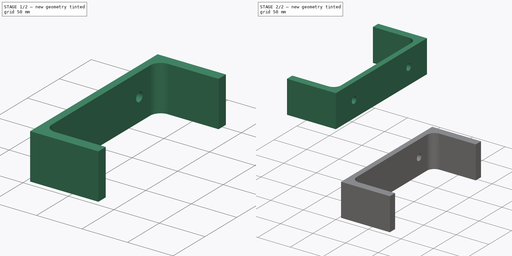
[diagram: build sequence overview — one tinted view per stage of 2, left to right]
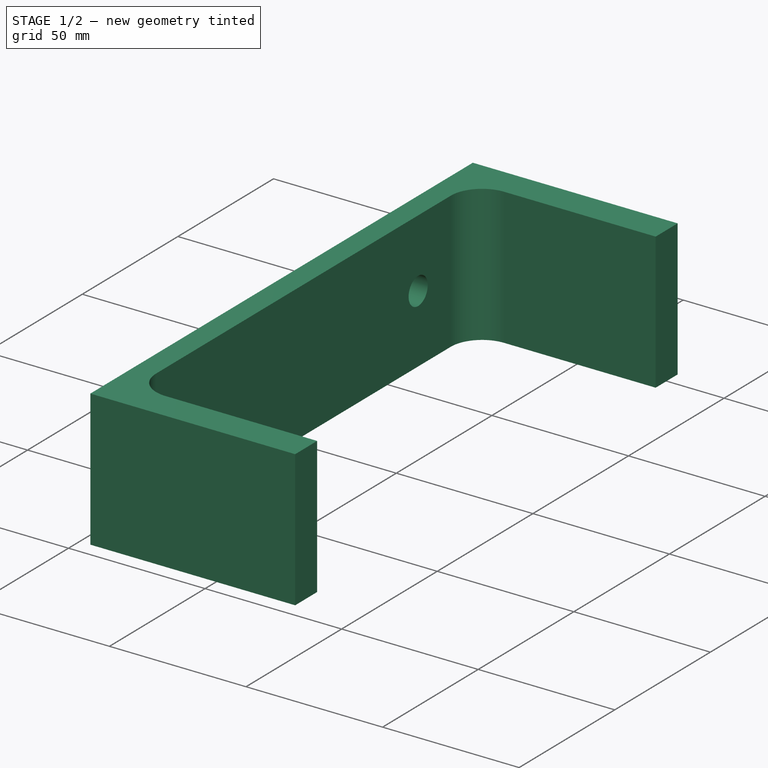
[diagram: stage 1 of 2 — iso view after this stage's code; geometry added in this stage tinted green]
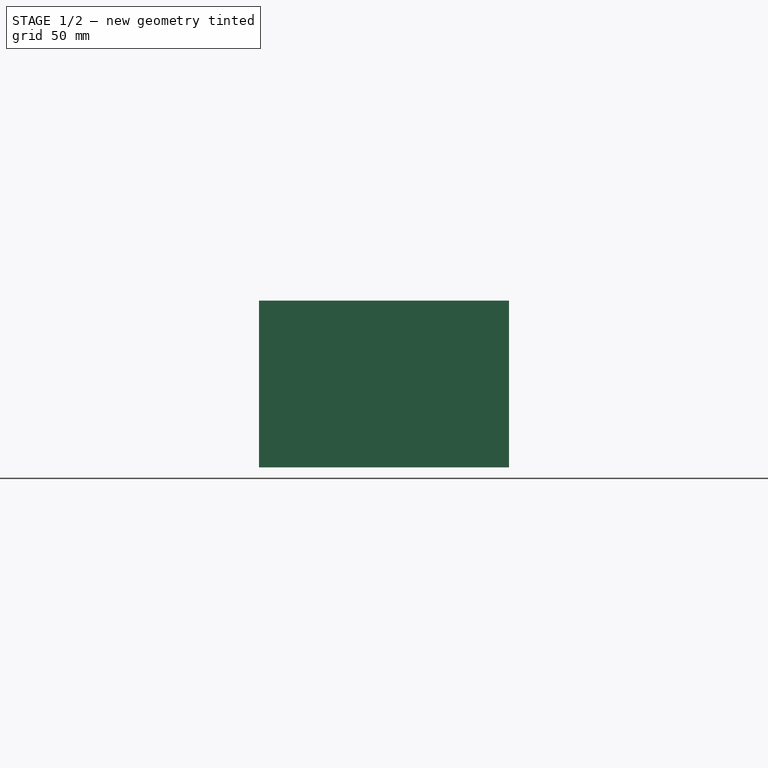
[diagram: stage 1 of 2 — front view after this stage's code; geometry added in this stage tinted green]
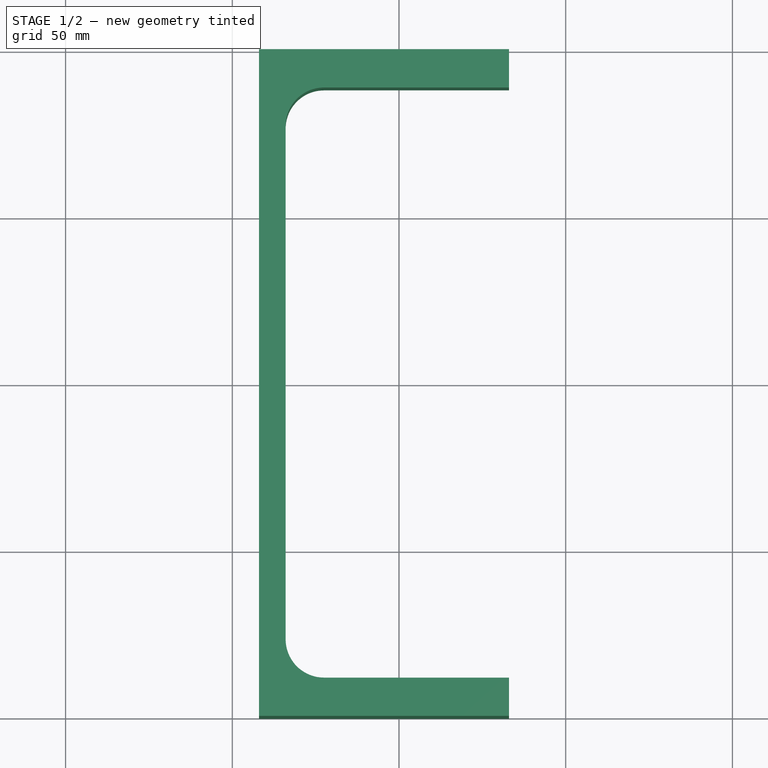
[diagram: stage 1 of 2 — top view after this stage's code; geometry added in this stage tinted green]
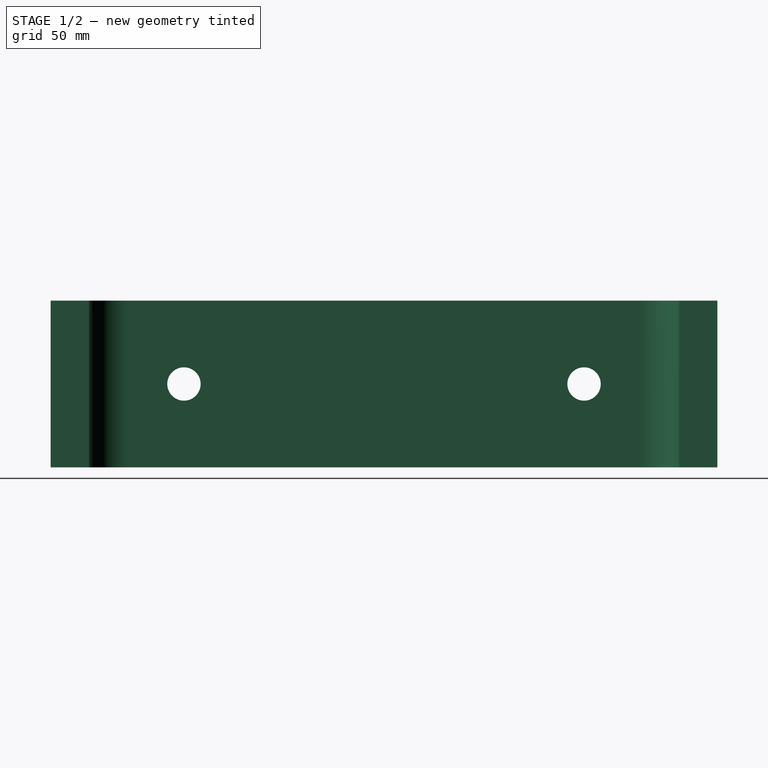
[diagram: stage 1 of 2 — right view after this stage's code; geometry added in this stage tinted green]
FCSTD DOCUMENT  (FreeCAD 0.16R6712 (Git))
Label: Assembly
License: All rights reserved
LicenseURL: http://en.wikipedia.org/wiki/All_rights_reserved
objects: Part::Feature×4, Sketcher::SketchObject×2, PartDesign::Pocket×2
note: 10 computed .brp shape members not serialized (recipe doc carries the construction recipe); baked Part::Feature solids carry a one-line shape summary decoded from their .brp

FEATURE [Part::Feature] BOLTS_part001  label="UAP200, l=50.001"
  Placement = pos=(8,-1.17395e-05,-120.896) rot=(0,0,1;0rad)
  shape: bbox 75 x 200 x 50 mm, 12 faces (baked)
FEATURE [Sketcher::SketchObject] Sketch001
  ExternalGeometry = -> [BOLTS_part001]
  Placement = pos=(8,-1.17395e-05,-120.896) rot=(0.57735,-0.57735,-0.57735;2.0944rad)
  Support = -> BOLTS_part001 [Face10]
  sketch-geometry (4):
    g0: Circle CenterX=-60 CenterY=25 CenterZ=0 NormalX=0 NormalY=0 NormalZ=1 Radius=5
    g1: GeomPoint [constr] X=0 Y=50 Z=0
    g2: LineSegment [constr] StartX=-100 StartY=25 StartZ=0 EndX=100 EndY=25 EndZ=0
    g3: Circle CenterX=60 CenterY=25 CenterZ=0 NormalX=0 NormalY=0 NormalZ=1 Radius=5
  constraints (12):
    c: Radius(g0) = 5
    c: DistanceX(g0,g-1) = 60
    c: PointOnObject(g1,g-3)
    c: PointOnObject(g1,g-2)
    c: Horizontal(g2)
    c: Symmetric(g1,g-1,g2)
    c: PointOnObject(g0,g2)
    c: PointOnObject(g3,g2)
    c: DistanceX(g-1,g3) = 60
    c: Radius(g3) = 5
    c: PointOnObject(g2,g-4)
    c: PointOnObject(g2,g-5)
FEATURE [PartDesign::Pocket] Pocket001
  Length = 10
  Placement = pos=(8,-1.17395e-05,-120.896) rot=(0,0,1;0rad)
  Sketch = -> Sketch001
  Type = 0
FEATURE [Part::Feature] Pocket001001  label="Pocket002"
  Placement = pos=(40,-3.52186e-05,-362.688) rot=(0,0,1;0rad)
  shape: bbox 75 x 200 x 50 mm, 14 faces (baked)
FEATURE [Part::Feature] Pocket001002  label="Pocket003"
  Placement = pos=(0,0,0) rot=(0,0,1;3.14159rad)
  shape: bbox 75 x 200 x 50 mm, 14 faces (baked)
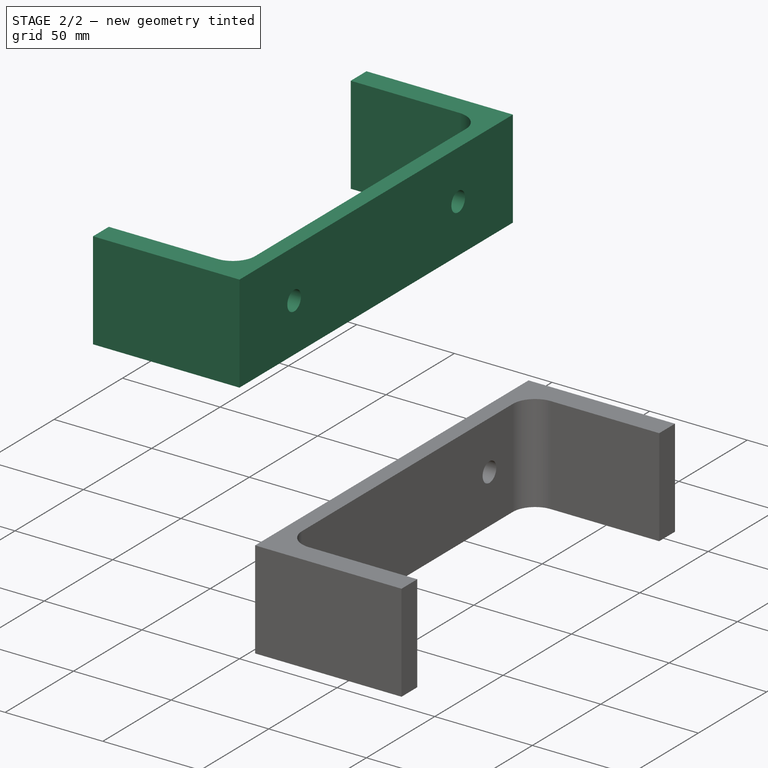
[diagram: stage 2 of 2 — iso view after this stage's code; geometry added in this stage tinted green]
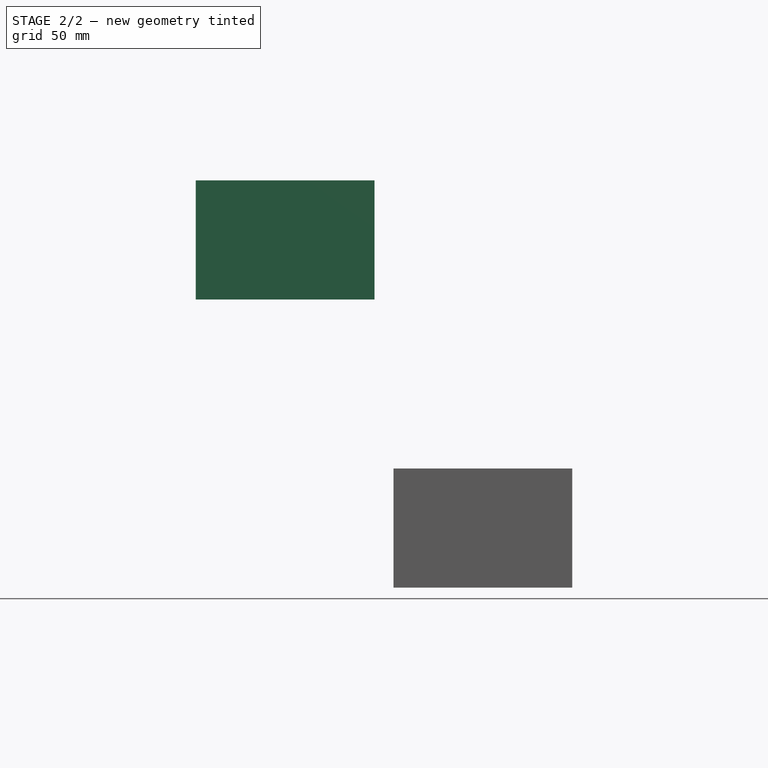
[diagram: stage 2 of 2 — front view after this stage's code; geometry added in this stage tinted green]
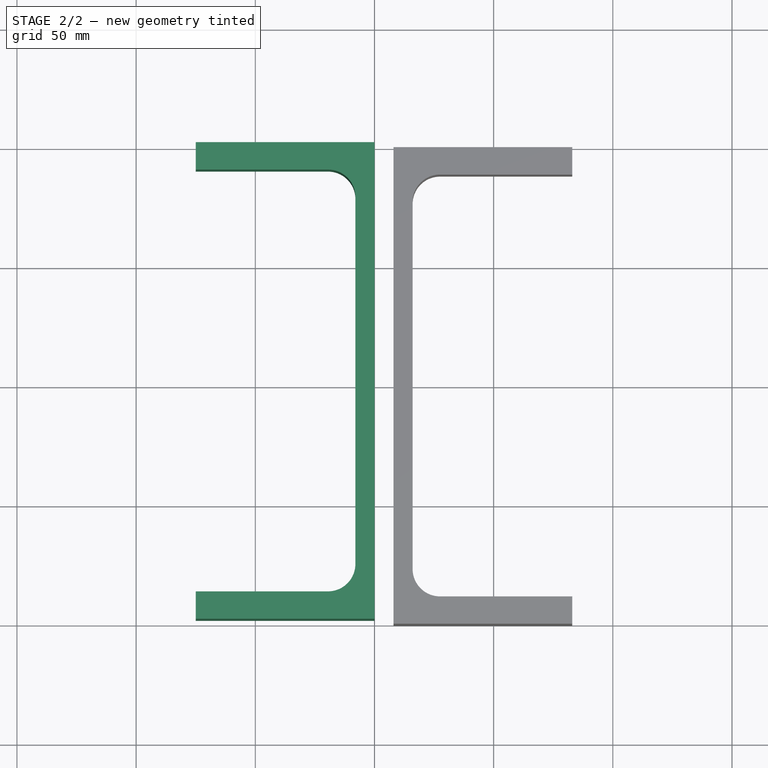
[diagram: stage 2 of 2 — top view after this stage's code; geometry added in this stage tinted green]
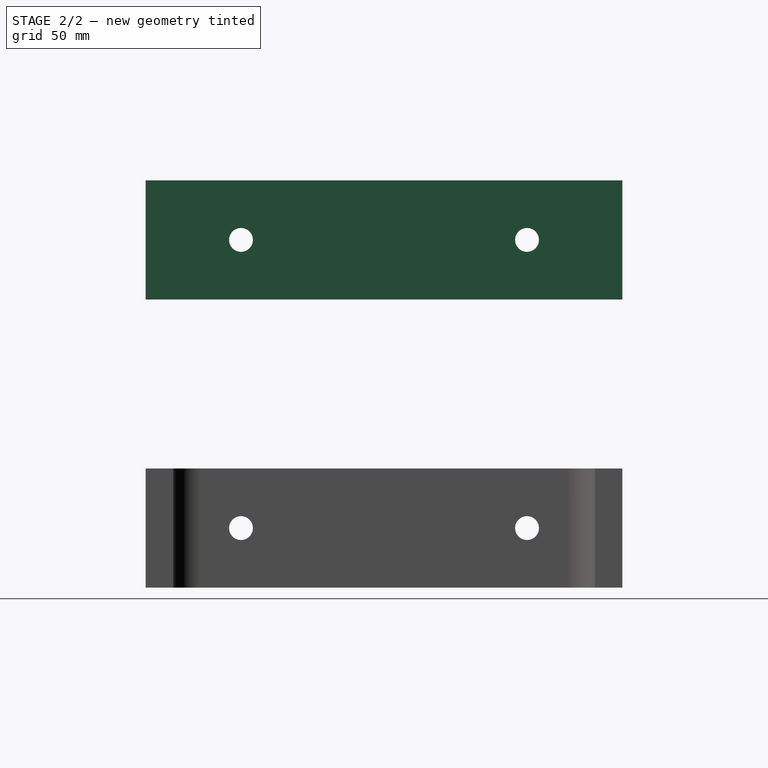
[diagram: stage 2 of 2 — right view after this stage's code; geometry added in this stage tinted green]
FEATURE [Part::Feature] BOLTS_part  label="UAP200, l=50.0"
  Placement = pos=(0,0,0) rot=(0,0,1;3.14159rad)
  shape: bbox 75 x 200 x 50 mm, 12 faces (baked)
FEATURE [Sketcher::SketchObject] Sketch
  ExternalGeometry = -> [BOLTS_part]
  Placement = pos=(0,0,0) rot=(0.57735,0.57735,0.57735;2.0944rad)
  Support = -> BOLTS_part [Face10]
  sketch-geometry (4):
    g0: Circle CenterX=-60 CenterY=25 CenterZ=0 NormalX=0 NormalY=0 NormalZ=1 Radius=5
    g1: GeomPoint [constr] X=0 Y=50 Z=0
    g2: LineSegment [constr] StartX=-100 StartY=25 StartZ=0 EndX=100 EndY=25 EndZ=0
    g3: Circle CenterX=60 CenterY=25 CenterZ=0 NormalX=0 NormalY=0 NormalZ=1 Radius=5
  constraints (12):
    c: Radius(g0) = 5
    c: DistanceX(g0,g-1) = 60
    c: PointOnObject(g1,g-3)
    c: PointOnObject(g1,g-2)
    c: Horizontal(g2)
    c: Symmetric(g1,g-1,g2)
    c: PointOnObject(g0,g2)
    c: PointOnObject(g3,g2)
    c: DistanceX(g-1,g3) = 60
    c: Radius(g3) = 5
    c: PointOnObject(g2,g-4)
    c: PointOnObject(g2,g-5)
FEATURE [PartDesign::Pocket] Pocket
  Length = 10
  Placement = pos=(0,0,0) rot=(0,0,1;3.14159rad)
  Sketch = -> Sketch
  Type = 0
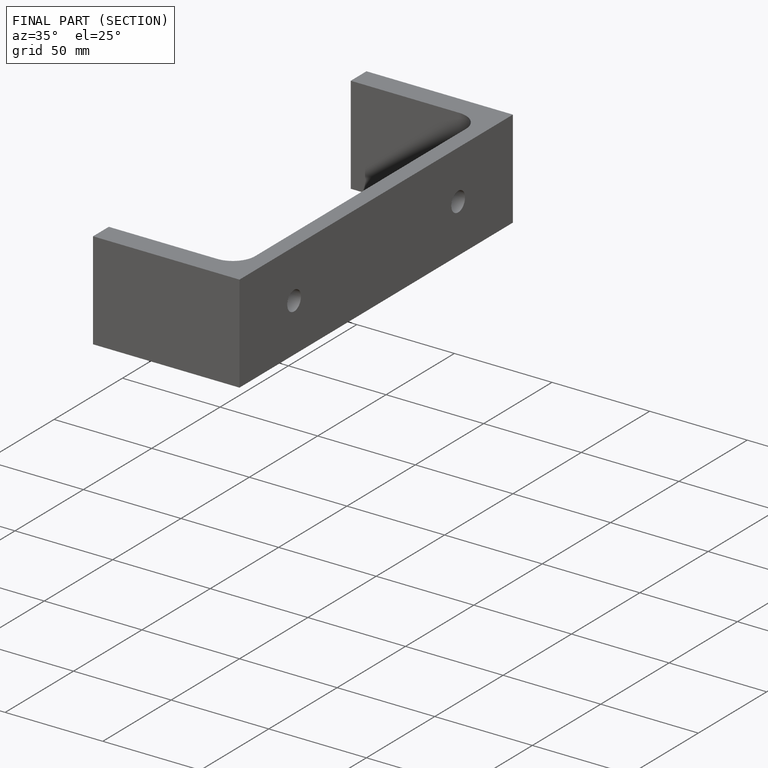
[diagram: finished part — half-section view (interior)]
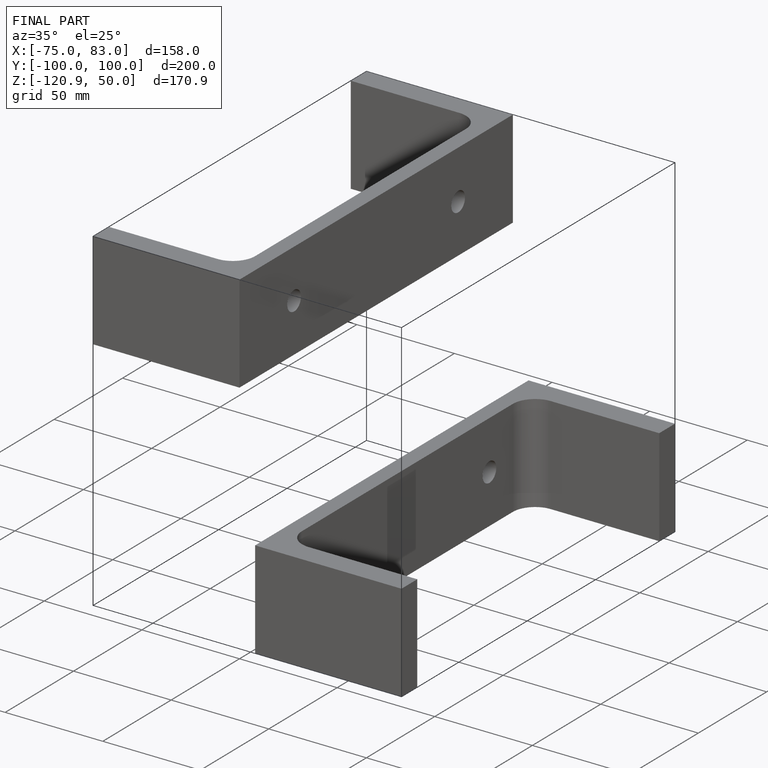
[diagram: finished part — iso view with bounding-box wireframe]
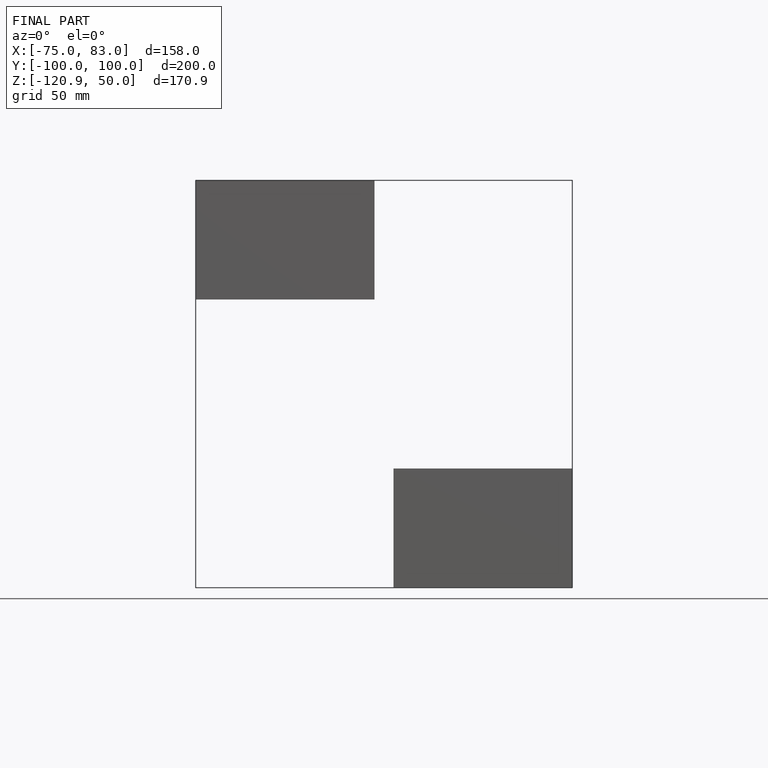
[diagram: finished part — front view with bounding-box wireframe]
